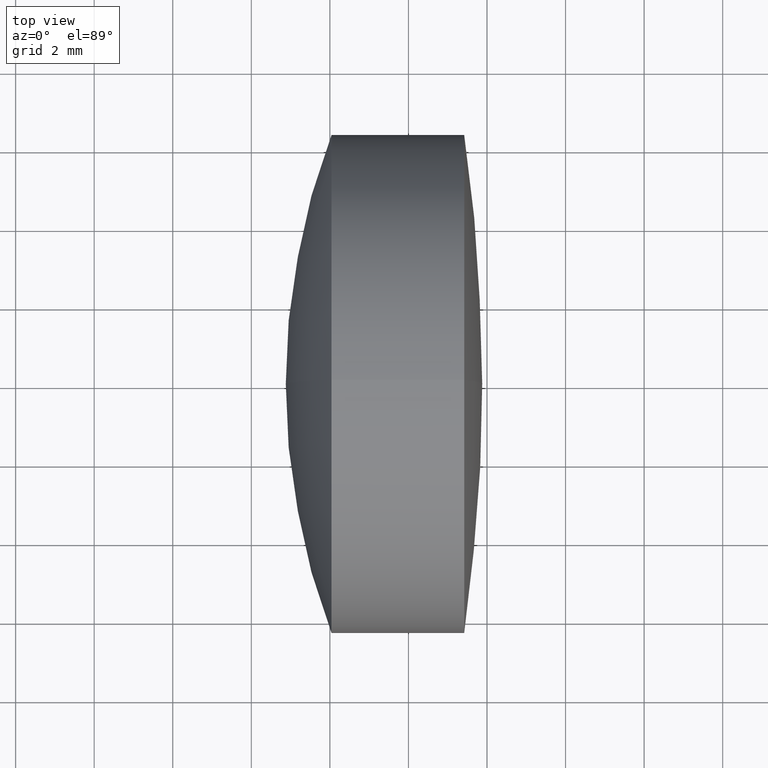
[diagram: clean part render]
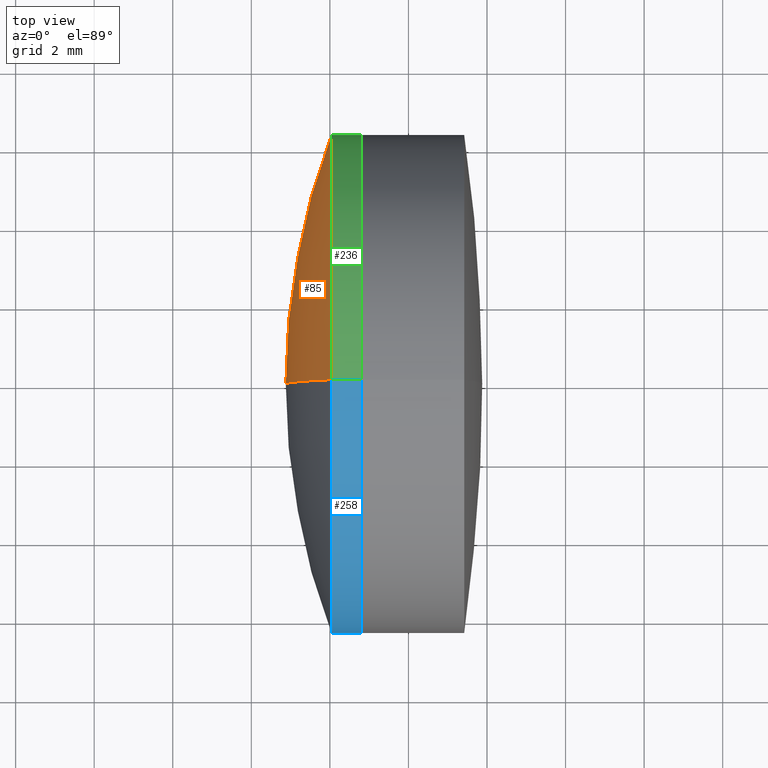
[diagram: same view with three faces highlighted in distinct colors, each labeled with its STEP entity id]
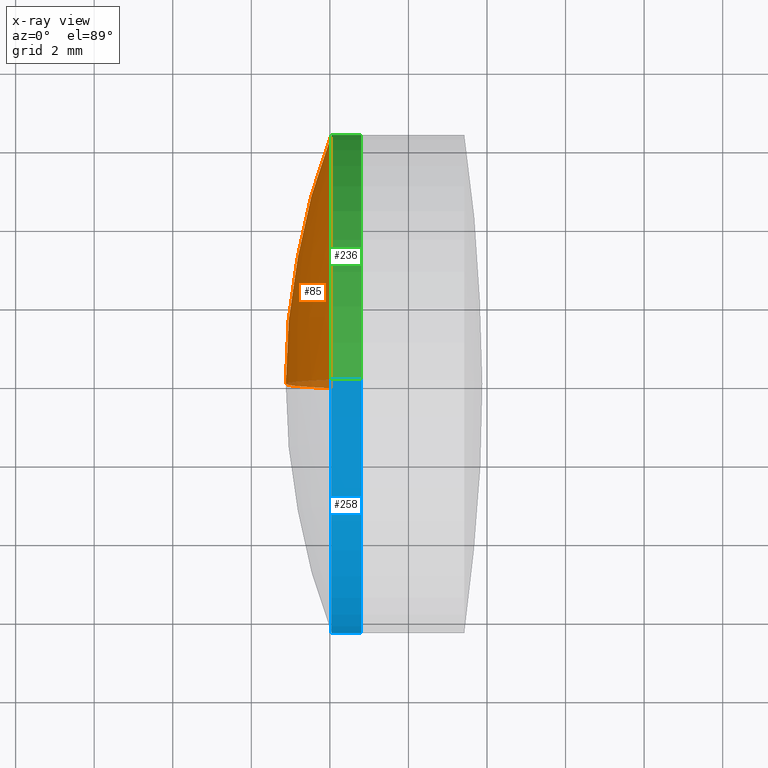
[diagram: x-ray of the same camera — body ghosted, the three highlighted faces saturated]
A machine part, top view with three faces highlighted in distinct colors.
The next image is the same camera in x-ray (body ghosted, the three faces saturated) — at least one of them is partly hidden behind the body in this view.
Their STEP definitions:

[orange] entity #85 — the highlighted spherical surface has radius 17.9 mm.
#5 = CARTESIAN_POINT ( 'NONE',  ( 18.77782915297076000, 0.0000000000000000000, -3.015192609939291800E-017 ) ) ;
#6 = ORIENTED_EDGE ( 'NONE', *, *, #180, .T. ) ;
#14 = SPHERICAL_SURFACE ( 'NONE', #260, 17.89999999999999900 ) ;
#30 = VERTEX_POINT ( 'NONE', #101 ) ;
#66 = DIRECTION ( 'NONE',  ( -1.000000000000000000, -0.0000000000000000000, -0.0000000000000000000 ) ) ;
#75 = DIRECTION ( 'NONE',  ( -0.0000000000000000000, 1.000000000000000000, 1.224646799147353200E-016 ) ) ;
#85 = ADVANCED_FACE ( 'NONE', ( #97 ), #14, .T. ) ;
#92 = DIRECTION ( 'NONE',  ( 0.0000000000000000000, -1.224646799147353200E-016, 1.000000000000000000 ) ) ;
#97 = FACE_OUTER_BOUND ( 'NONE', #185, .T. ) ;
#101 = CARTESIAN_POINT ( 'NONE',  ( 2.042014263937123700, 7.776507174585694100E-016, -6.350000000000000500 ) ) ;
#120 = VERTEX_POINT ( 'NONE', #231 ) ;
#122 = CARTESIAN_POINT ( 'NONE',  ( 18.77782915297076000, 0.0000000000000000000, -3.015192609939291800E-017 ) ) ;
#124 = CARTESIAN_POINT ( 'NONE',  ( 2.042014263937123700, 0.0000000000000000000, 0.0000000000000000000 ) ) ;
#125 = DIRECTION ( 'NONE',  ( 0.0000000000000000000, 0.0000000000000000000, 1.000000000000000000 ) ) ;
#159 = EDGE_CURVE ( 'NONE', #120, #309, #335, .T. ) ;
#163 = DIRECTION ( 'NONE',  ( 0.0000000000000000000, 0.0000000000000000000, -1.000000000000000000 ) ) ;
#171 = CIRCLE ( 'NONE', #203, 6.349999999999999600 ) ;
#179 = ORIENTED_EDGE ( 'NONE', *, *, #159, .F. ) ;
#180 = EDGE_CURVE ( 'NONE', #120, #30, #171, .T. ) ;
#185 = EDGE_LOOP ( 'NONE', ( #6, #303, #179 ) ) ;
#203 = AXIS2_PLACEMENT_3D ( 'NONE', #124, #66, #246 ) ;
#211 = DIRECTION ( 'NONE',  ( 0.0000000000000000000, 1.000000000000000000, 0.0000000000000000000 ) ) ;
#216 = CARTESIAN_POINT ( 'NONE',  ( 0.8778291529707611400, 0.0000000000000000000, 1.065906959137488200E-015 ) ) ;
#218 = EDGE_CURVE ( 'NONE', #30, #309, #284, .T. ) ;
#231 = CARTESIAN_POINT ( 'NONE',  ( 2.042014263937123700, 0.0000000000000000000, 6.350000000000000500 ) ) ;
#246 = DIRECTION ( 'NONE',  ( 0.0000000000000000000, 0.0000000000000000000, 1.000000000000000000 ) ) ;
#260 = AXIS2_PLACEMENT_3D ( 'NONE', #305, #211, #125 ) ;
#284 = CIRCLE ( 'NONE', #321, 17.89999999999999900 ) ;
#303 = ORIENTED_EDGE ( 'NONE', *, *, #218, .T. ) ;
#305 = CARTESIAN_POINT ( 'NONE',  ( 18.77782915297076000, 0.0000000000000000000, -3.015192609939291800E-017 ) ) ;
#307 = DIRECTION ( 'NONE',  ( 0.0000000000000000000, -1.000000000000000000, 0.0000000000000000000 ) ) ;
#309 = VERTEX_POINT ( 'NONE', #216 ) ;
#314 = AXIS2_PLACEMENT_3D ( 'NONE', #122, #307, #163 ) ;
#321 = AXIS2_PLACEMENT_3D ( 'NONE', #5, #75, #92 ) ;
#335 = CIRCLE ( 'NONE', #314, 17.89999999999999900 ) ;

[blue] entity #258 — the highlighted cylindrical surface (partial cylindrical patch) has radius 6.35 mm, axis along (-1, -0, -0).
#1 = ORIENTED_EDGE ( 'NONE', *, *, #9, .T. ) ;
#4 = CARTESIAN_POINT ( 'NONE',  ( -9.702612178336682500, 0.0000000000000000000, 0.0000000000000000000 ) ) ;
#9 = EDGE_CURVE ( 'NONE', #326, #319, #221, .T. ) ;
#15 = EDGE_CURVE ( 'NONE', #319, #120, #347, .T. ) ;
#20 = DIRECTION ( 'NONE',  ( -1.000000000000000000, -0.0000000000000000000, -0.0000000000000000000 ) ) ;
#22 = CARTESIAN_POINT ( 'NONE',  ( -9.702612178336682500, 7.776507174585692200E-016, -6.349999999999999600 ) ) ;
#24 = AXIS2_PLACEMENT_3D ( 'NONE', #105, #178, #224 ) ;
#30 = VERTEX_POINT ( 'NONE', #101 ) ;
#34 = DIRECTION ( 'NONE',  ( 0.0000000000000000000, 0.0000000000000000000, 1.000000000000000000 ) ) ;
#37 = ORIENTED_EDGE ( 'NONE', *, *, #249, .F. ) ;
#45 = CARTESIAN_POINT ( 'NONE',  ( 2.791162019973179000, 7.776507174585692200E-016, -6.349999999999999600 ) ) ;
#53 = ORIENTED_EDGE ( 'NONE', *, *, #287, .F. ) ;
#68 = EDGE_LOOP ( 'NONE', ( #53, #1, #198, #37 ) ) ;
#101 = CARTESIAN_POINT ( 'NONE',  ( 2.042014263937123700, 7.776507174585694100E-016, -6.350000000000000500 ) ) ;
#105 = CARTESIAN_POINT ( 'NONE',  ( 2.042014263937123700, 0.0000000000000000000, 0.0000000000000000000 ) ) ;
#117 = DIRECTION ( 'NONE',  ( -1.000000000000000000, -0.0000000000000000000, -0.0000000000000000000 ) ) ;
#120 = VERTEX_POINT ( 'NONE', #231 ) ;
#137 = FACE_OUTER_BOUND ( 'NONE', #68, .T. ) ;
#139 = CARTESIAN_POINT ( 'NONE',  ( -9.702612178336682500, 0.0000000000000000000, 6.349999999999999600 ) ) ;
#144 = AXIS2_PLACEMENT_3D ( 'NONE', #206, #230, #34 ) ;
#174 = LINE ( 'NONE', #22, #205 ) ;
#178 = DIRECTION ( 'NONE',  ( -1.000000000000000000, -0.0000000000000000000, -0.0000000000000000000 ) ) ;
#191 = CARTESIAN_POINT ( 'NONE',  ( 2.791162019973179000, 0.0000000000000000000, 6.349999999999999600 ) ) ;
#198 = ORIENTED_EDGE ( 'NONE', *, *, #15, .T. ) ;
#205 = VECTOR ( 'NONE', #20, 1000.000000000000000 ) ;
#206 = CARTESIAN_POINT ( 'NONE',  ( 2.791162019973179000, 0.0000000000000000000, 0.0000000000000000000 ) ) ;
#221 = CIRCLE ( 'NONE', #144, 6.349999999999999600 ) ;
#223 = AXIS2_PLACEMENT_3D ( 'NONE', #4, #252, #253 ) ;
#224 = DIRECTION ( 'NONE',  ( 0.0000000000000000000, 0.0000000000000000000, 1.000000000000000000 ) ) ;
#230 = DIRECTION ( 'NONE',  ( -1.000000000000000000, -0.0000000000000000000, -0.0000000000000000000 ) ) ;
#231 = CARTESIAN_POINT ( 'NONE',  ( 2.042014263937123700, 0.0000000000000000000, 6.350000000000000500 ) ) ;
#249 = EDGE_CURVE ( 'NONE', #30, #120, #312, .T. ) ;
#252 = DIRECTION ( 'NONE',  ( -1.000000000000000000, -0.0000000000000000000, -0.0000000000000000000 ) ) ;
#253 = DIRECTION ( 'NONE',  ( 0.0000000000000000000, 0.0000000000000000000, 1.000000000000000000 ) ) ;
#254 = CYLINDRICAL_SURFACE ( 'NONE', #223, 6.349999999999999600 ) ;
#258 = ADVANCED_FACE ( 'NONE', ( #137 ), #254, .T. ) ;
#287 = EDGE_CURVE ( 'NONE', #326, #30, #174, .T. ) ;
#312 = CIRCLE ( 'NONE', #24, 6.349999999999999600 ) ;
#319 = VERTEX_POINT ( 'NONE', #191 ) ;
#325 = VECTOR ( 'NONE', #117, 1000.000000000000000 ) ;
#326 = VERTEX_POINT ( 'NONE', #45 ) ;
#347 = LINE ( 'NONE', #139, #325 ) ;

[green] entity #236 — the highlighted cylindrical surface (partial cylindrical patch) has radius 6.35 mm, axis along (-1, -0, -0).
#15 = EDGE_CURVE ( 'NONE', #319, #120, #347, .T. ) ;
#20 = DIRECTION ( 'NONE',  ( -1.000000000000000000, -0.0000000000000000000, -0.0000000000000000000 ) ) ;
#22 = CARTESIAN_POINT ( 'NONE',  ( -9.702612178336682500, 7.776507174585692200E-016, -6.349999999999999600 ) ) ;
#30 = VERTEX_POINT ( 'NONE', #101 ) ;
#45 = CARTESIAN_POINT ( 'NONE',  ( 2.791162019973179000, 7.776507174585692200E-016, -6.349999999999999600 ) ) ;
#46 = EDGE_LOOP ( 'NONE', ( #281, #263, #152, #209 ) ) ;
#66 = DIRECTION ( 'NONE',  ( -1.000000000000000000, -0.0000000000000000000, -0.0000000000000000000 ) ) ;
#67 = DIRECTION ( 'NONE',  ( -1.000000000000000000, -0.0000000000000000000, -0.0000000000000000000 ) ) ;
#88 = AXIS2_PLACEMENT_3D ( 'NONE', #136, #67, #324 ) ;
#101 = CARTESIAN_POINT ( 'NONE',  ( 2.042014263937123700, 7.776507174585694100E-016, -6.350000000000000500 ) ) ;
#103 = FACE_OUTER_BOUND ( 'NONE', #46, .T. ) ;
#117 = DIRECTION ( 'NONE',  ( -1.000000000000000000, -0.0000000000000000000, -0.0000000000000000000 ) ) ;
#120 = VERTEX_POINT ( 'NONE', #231 ) ;
#124 = CARTESIAN_POINT ( 'NONE',  ( 2.042014263937123700, 0.0000000000000000000, 0.0000000000000000000 ) ) ;
#136 = CARTESIAN_POINT ( 'NONE',  ( -9.702612178336682500, 0.0000000000000000000, 0.0000000000000000000 ) ) ;
#139 = CARTESIAN_POINT ( 'NONE',  ( -9.702612178336682500, 0.0000000000000000000, 6.349999999999999600 ) ) ;
#151 = CARTESIAN_POINT ( 'NONE',  ( 2.791162019973179000, 0.0000000000000000000, 0.0000000000000000000 ) ) ;
#152 = ORIENTED_EDGE ( 'NONE', *, *, #180, .F. ) ;
#157 = DIRECTION ( 'NONE',  ( -1.000000000000000000, -0.0000000000000000000, -0.0000000000000000000 ) ) ;
#171 = CIRCLE ( 'NONE', #203, 6.349999999999999600 ) ;
#174 = LINE ( 'NONE', #22, #205 ) ;
#180 = EDGE_CURVE ( 'NONE', #120, #30, #171, .T. ) ;
#191 = CARTESIAN_POINT ( 'NONE',  ( 2.791162019973179000, 0.0000000000000000000, 6.349999999999999600 ) ) ;
#200 = CIRCLE ( 'NONE', #323, 6.349999999999999600 ) ;
#203 = AXIS2_PLACEMENT_3D ( 'NONE', #124, #66, #246 ) ;
#205 = VECTOR ( 'NONE', #20, 1000.000000000000000 ) ;
#209 = ORIENTED_EDGE ( 'NONE', *, *, #15, .F. ) ;
#231 = CARTESIAN_POINT ( 'NONE',  ( 2.042014263937123700, 0.0000000000000000000, 6.350000000000000500 ) ) ;
#236 = ADVANCED_FACE ( 'NONE', ( #103 ), #341, .T. ) ;
#246 = DIRECTION ( 'NONE',  ( 0.0000000000000000000, 0.0000000000000000000, 1.000000000000000000 ) ) ;
#263 = ORIENTED_EDGE ( 'NONE', *, *, #287, .T. ) ;
#270 = EDGE_CURVE ( 'NONE', #319, #326, #200, .T. ) ;
#281 = ORIENTED_EDGE ( 'NONE', *, *, #270, .T. ) ;
#287 = EDGE_CURVE ( 'NONE', #326, #30, #174, .T. ) ;
#318 = DIRECTION ( 'NONE',  ( 0.0000000000000000000, 0.0000000000000000000, 1.000000000000000000 ) ) ;
#319 = VERTEX_POINT ( 'NONE', #191 ) ;
#323 = AXIS2_PLACEMENT_3D ( 'NONE', #151, #157, #318 ) ;
#324 = DIRECTION ( 'NONE',  ( 0.0000000000000000000, 0.0000000000000000000, 1.000000000000000000 ) ) ;
#325 = VECTOR ( 'NONE', #117, 1000.000000000000000 ) ;
#326 = VERTEX_POINT ( 'NONE', #45 ) ;
#341 = CYLINDRICAL_SURFACE ( 'NONE', #88, 6.349999999999999600 ) ;
#347 = LINE ( 'NONE', #139, #325 ) ;